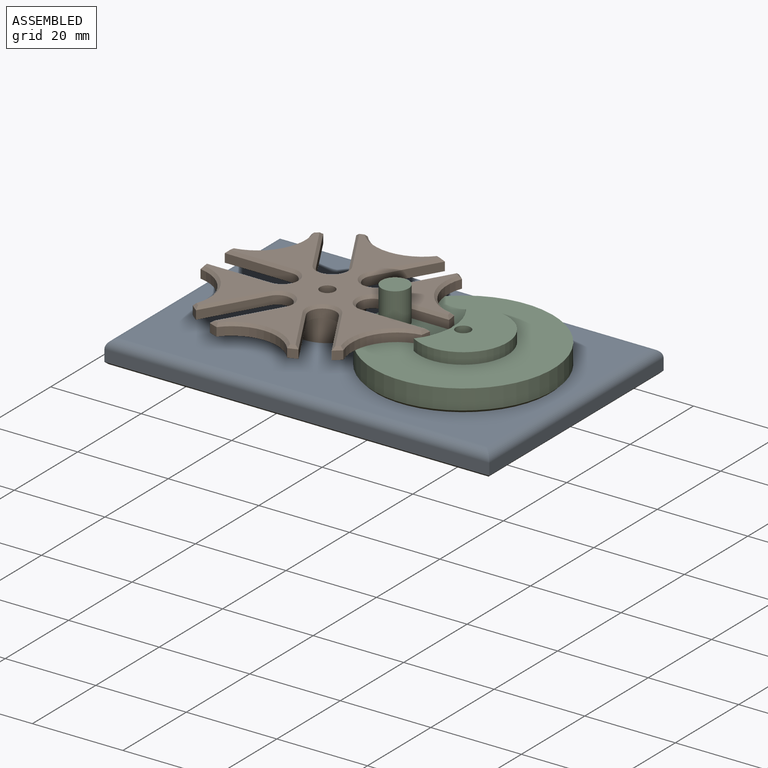
[diagram: assembled view]
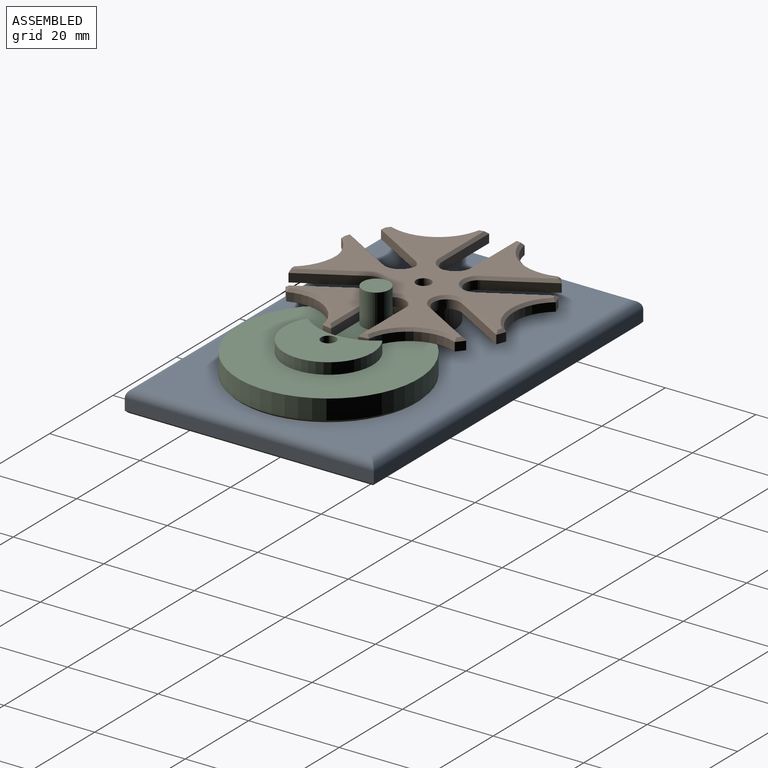
[diagram: assembled view, second angle]
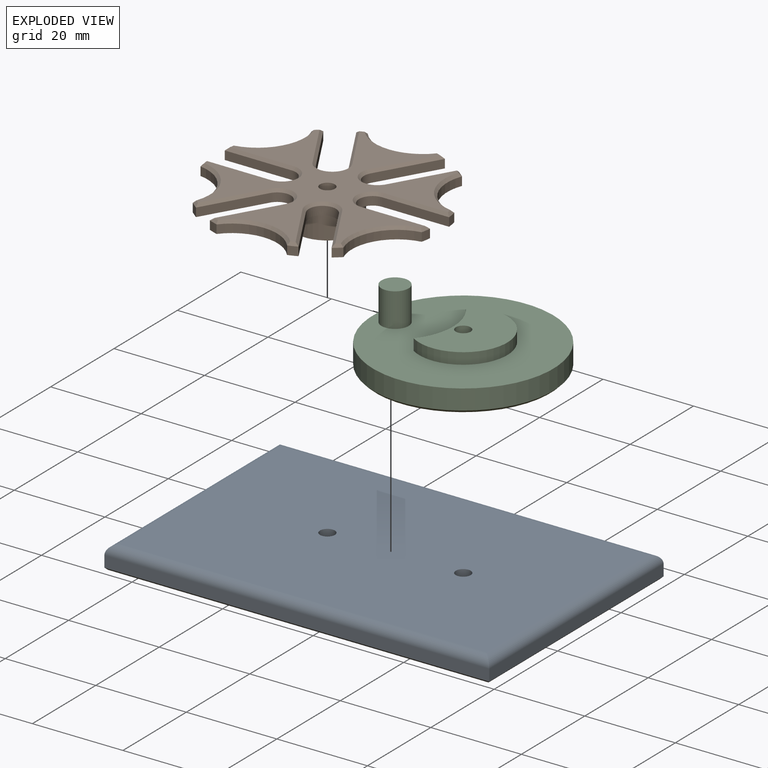
[diagram: exploded view]
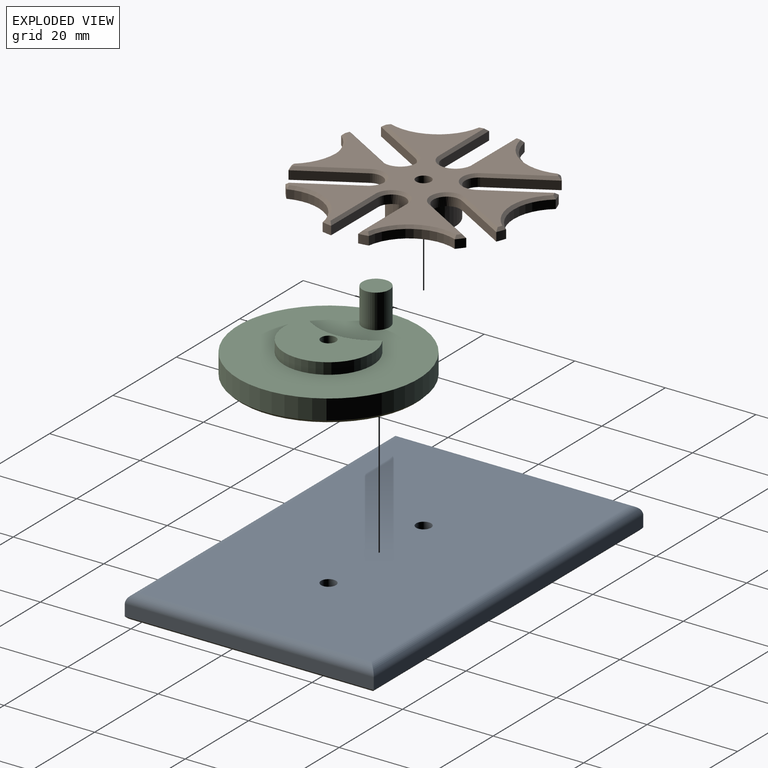
[diagram: exploded view, second angle]
ASSEMBLY  parts=3 mates=4
PART A: 18 faces, bbox 85x55x5 mm
  f0: plane 55x2.5mm, normal (-1,0,0), area 137.5mm2, adj f1,f4,f10,f15
  f1: plane 85x2.5mm, normal (0,-1,0), area 212.5mm2, adj f0,f2,f11,f14
  f2: plane 55x2.5mm, normal (1,0,0), area 137.5mm2, adj f1,f4,f13,f16
  f3: cylinder r=1.65mm len=4.5mm, axis (0,0,-1), area 46.7mm2, adj f6,f9
  f4: plane 85x2.5mm, normal (0,1,0), area 212.5mm2, adj f0,f2,f12,f17
  f5: cylinder r=1.65mm len=4.5mm, axis (0,0,-1), area 46.7mm2, adj f6,f8
  f6: plane 81x51mm, normal (0,0,1), area 4113.9mm2, adj f3,f5,f14,f15,f16,f17
  f7: plane 84x54mm, normal (0,0,-1), area 4507mm2, adj f8,f9,f10,f11,f12,f13
  f8: cone r=2.15mm half-angle=45deg, axis (0,0,-1), area 8.4mm2, adj f5,f7
  f9: cone r=2.15mm half-angle=45deg, axis (0,0,-1), area 8.4mm2, adj f3,f7
  f10: plane 55x0.5mm, normal (-0.71,0,-0.71), area 38.5mm2, adj f0,f7,f11,f12
  f11: plane 85x0.5mm, normal (0,-0.71,-0.71), area 59.8mm2, adj f1,f7,f10,f13
  f12: plane 85x0.5mm, normal (0,0.71,-0.71), area 59.8mm2, adj f4,f7,f10,f13
  f13: plane 55x0.5mm, normal (0.71,0,-0.71), area 38.5mm2, adj f2,f7,f11,f12
  f14: cylinder r=2mm len=85mm, axis (-1,0,0), area 262.5mm2, adj f1,f6,f15,f16
  f15: cylinder r=2mm len=55mm, axis (0,1,0), area 168.2mm2, adj f0,f6,f14,f17
  f16: cylinder r=2mm len=55mm, axis (0,-1,0), area 168.2mm2, adj f2,f6,f14,f17
  f17: cylinder r=2mm len=85mm, axis (1,0,0), area 262.5mm2, adj f4,f6,f15,f16
PART B: 82 faces, bbox 49.6x47.5x7.5 mm
  f0: plane 21.32x19.99mm, normal (0,0,-1), area 144mm2, adj f6,f7,f8,f9,f10,f11,f12,f43
  f1: plane 19.62x17.69mm, normal (0,0,-1), area 144mm2, adj f5,f6,f36,f37,f38,f39,f40,f43
  f2: plane 21.32x19.99mm, normal (0,0,-1), area 144mm2, adj f30,f31,f32,f33,f34,f35,f36,f43
  f3: plane 21.32x19.99mm, normal (0,0,-1), area 144mm2, adj f24,f25,f26,f27,f28,f29,f30,f43
  f4: plane 19.62x17.69mm, normal (0,0,-1), area 144mm2, adj f18,f19,f20,f21,f22,f23,f24,f43
  f5: plane 12.83x7.41mm, normal (-0.87,-0.5,0), area 28.2mm2, adj f1,f6,f40,f50
  f6: cylinder r=3mm len=5.6mm, axis (0,0,-1), area 17.9mm2, adj f0,f1,f5,f7,f48
  f7: plane 12.83x7.41mm, normal (0.87,0.5,0), area 28.2mm2, adj f0,f6,f8,f46
  f8: cylinder r=25mm len=1.9mm, axis (0,0,-1), area 4.1mm2, adj f0,f7,f9,f47
  f9: cylinder r=10mm len=13.52mm, axis (0,0,-1), area 34mm2, adj f0,f8,f10,f49
  f10: cylinder r=25mm len=2.11mm, axis (0,0,-1), area 4.1mm2, adj f0,f9,f11,f51
  f11: plane 14.82x1.9mm, normal (0,-1,0), area 28.2mm2, adj f0,f10,f12,f53
  f12: cylinder r=3mm len=6mm, axis (0,0,-1), area 17.9mm2, adj f0,f11,f13,f42,f55
  f13: plane 14.82x1.9mm, normal (0,1,0), area 28.2mm2, adj f12,f14,f42,f57
  f14: cylinder r=25mm len=2.11mm, axis (0,0,-1), area 4.1mm2, adj f13,f15,f42,f59
  f15: cylinder r=10mm len=13.52mm, axis (0,0,-1), area 34mm2, adj f14,f16,f42,f61
  f16: cylinder r=25mm len=1.9mm, axis (0,0,-1), area 4.1mm2, adj f15,f17,f42,f63
  f17: plane 12.83x7.41mm, normal (0.87,-0.5,0), area 28.2mm2, adj f16,f18,f42,f65
  f18: cylinder r=3mm len=5.6mm, axis (0,0,-1), area 17.9mm2, adj f4,f17,f19,f42,f67
  f19: plane 12.83x7.41mm, normal (-0.87,0.5,0), area 28.2mm2, adj f4,f18,f20,f69
  f20: cylinder r=25mm len=2.01mm, axis (0,0,-1), area 4.1mm2, adj f4,f19,f21,f71
  f21: cylinder r=10mm len=15.61mm, axis (0,0,-1), area 34mm2, adj f4,f20,f22,f73
  f22: cylinder r=25mm len=2.01mm, axis (0,0,-1), area 4.1mm2, adj f4,f21,f23,f75
  f23: plane 12.83x7.41mm, normal (0.87,0.5,0), area 28.2mm2, adj f4,f22,f24,f77
  f24: cylinder r=3mm len=5.6mm, axis (0,0,-1), area 17.9mm2, adj f3,f4,f23,f25,f79
  f25: plane 12.83x7.41mm, normal (-0.87,-0.5,0), area 28.2mm2, adj f3,f24,f26,f81
  f26: cylinder r=25mm len=1.9mm, axis (0,0,-1), area 4.1mm2, adj f3,f25,f27,f80
  f27: cylinder r=10mm len=13.52mm, axis (0,0,-1), area 34mm2, adj f3,f26,f28,f78
  f28: cylinder r=25mm len=2.11mm, axis (0,0,-1), area 4.1mm2, adj f3,f27,f29,f76
  f29: plane 14.82x1.9mm, normal (0,1,0), area 28.2mm2, adj f3,f28,f30,f74
  f30: cylinder r=3mm len=6mm, axis (0,0,-1), area 17.9mm2, adj f2,f3,f29,f31,f72
  f31: plane 14.82x1.9mm, normal (0,-1,0), area 28.2mm2, adj f2,f30,f32,f70
  f32: cylinder r=25mm len=2.11mm, axis (0,0,-1), area 4.1mm2, adj f2,f31,f33,f68
  f33: cylinder r=10mm len=13.52mm, axis (0,0,-1), area 34mm2, adj f2,f32,f34,f66
  f34: cylinder r=25mm len=1.9mm, axis (0,0,-1), area 4.1mm2, adj f2,f33,f35,f64
  f35: plane 12.83x7.41mm, normal (-0.87,0.5,0), area 28.2mm2, adj f2,f34,f36,f62
  f36: cylinder r=3mm len=5.6mm, axis (0,0,-1), area 17.9mm2, adj f1,f2,f35,f37,f60
  f37: plane 12.83x7.41mm, normal (0.87,-0.5,0), area 28.2mm2, adj f1,f36,f38,f58
  f38: cylinder r=25mm len=2.01mm, axis (0,0,-1), area 4.1mm2, adj f1,f37,f39,f56
  f39: cylinder r=10mm len=15.61mm, axis (0,0,-1), area 34mm2, adj f1,f38,f40,f54
  f40: cylinder r=25mm len=2.01mm, axis (0,0,-1), area 4.1mm2, adj f1,f5,f39,f52
  f41: plane 48.27x46.1mm, normal (0,0,1), area 791.4mm2, adj f45,f46,f47,f48,f49,f50,f51,f52
  f42: plane 21.32x19.99mm, normal (0,0,-1), area 144mm2, adj f12,f13,f14,f15,f16,f17,f18,f43
  f43: cylinder r=7mm len=14mm, axis (0,0,1), area 219.9mm2, adj f0,f1,f2,f3,f4,f42,f44
  f44: plane 14x14mm, normal (0,0,-1), area 145.4mm2, adj f43,f45
  f45: cylinder r=1.65mm len=7.5mm, axis (0,0,1), area 77.8mm2, adj f41,f44
  f46: plane 13.14x7.59mm, normal (0.61,0.35,0.71), area 12.3mm2, adj f7,f41,f47,f48
  f47: cone r=24.4mm half-angle=45deg, axis (0,0,-1), area 1.3mm2, adj f8,f41,f46,f49
  f48: cone r=3mm half-angle=45deg, axis (0,0,1), area 8.8mm2, adj f6,f41,f46,f50
  f49: cone r=10mm half-angle=45deg, axis (0,0,1), area 15.3mm2, adj f9,f41,f47,f51
  f50: plane 12.84x7.94mm, normal (-0.61,-0.35,0.71), area 12.3mm2, adj f5,f41,f48,f52
  f51: cone r=24.4mm half-angle=45deg, axis (0,0,-1), area 1.3mm2, adj f10,f41,f49,f53
  f52: cone r=24.4mm half-angle=45deg, axis (0,0,-1), area 1.3mm2, adj f40,f41,f50,f54
  f53: plane 14.83x0.61mm, normal (0,-0.71,0.71), area 12.3mm2, adj f11,f41,f51,f55
  f54: cone r=10mm half-angle=45deg, axis (0,0,1), area 15.3mm2, adj f39,f41,f52,f56
  f55: cone r=3mm half-angle=45deg, axis (0,0,1), area 8.8mm2, adj f12,f41,f53,f57
  f56: cone r=24.4mm half-angle=45deg, axis (0,0,-1), area 1.3mm2, adj f38,f41,f54,f58
  f57: plane 14.83x0.61mm, normal (0,0.71,0.71), area 12.3mm2, adj f13,f41,f55,f59
  f58: plane 12.84x7.94mm, normal (0.61,-0.35,0.71), area 12.3mm2, adj f37,f41,f56,f60
  f59: cone r=24.4mm half-angle=45deg, axis (0,0,-1), area 1.3mm2, adj f14,f41,f57,f61
  f60: cone r=3mm half-angle=45deg, axis (0,0,1), area 8.8mm2, adj f36,f41,f58,f62
  f61: cone r=10mm half-angle=45deg, axis (0,0,1), area 15.3mm2, adj f15,f41,f59,f63
  f62: plane 13.14x7.59mm, normal (-0.61,0.35,0.71), area 12.3mm2, adj f35,f41,f60,f64
  f63: cone r=24.4mm half-angle=45deg, axis (0,0,-1), area 1.3mm2, adj f16,f41,f61,f65
  f64: cone r=24.4mm half-angle=45deg, axis (0,0,-1), area 1.3mm2, adj f34,f41,f62,f66
  f65: plane 13.14x7.59mm, normal (0.61,-0.35,0.71), area 12.3mm2, adj f17,f41,f63,f67
  f66: cone r=10mm half-angle=45deg, axis (0,0,1), area 15.3mm2, adj f33,f41,f64,f68
  f67: cone r=3mm half-angle=45deg, axis (0,0,1), area 8.8mm2, adj f18,f41,f65,f69
  f68: cone r=24.4mm half-angle=45deg, axis (0,0,-1), area 1.3mm2, adj f32,f41,f66,f70
  f69: plane 12.84x7.94mm, normal (-0.61,0.35,0.71), area 12.3mm2, adj f19,f41,f67,f71
  f70: plane 14.83x0.61mm, normal (0,-0.71,0.71), area 12.3mm2, adj f31,f41,f68,f72
  f71: cone r=24.4mm half-angle=45deg, axis (0,0,-1), area 1.3mm2, adj f20,f41,f69,f73
  f72: cone r=3mm half-angle=45deg, axis (0,0,1), area 8.8mm2, adj f30,f41,f70,f74
  f73: cone r=10mm half-angle=45deg, axis (0,0,1), area 15.3mm2, adj f21,f41,f71,f75
  f74: plane 14.83x0.61mm, normal (0,0.71,0.71), area 12.3mm2, adj f29,f41,f72,f76
  f75: cone r=24.4mm half-angle=45deg, axis (0,0,-1), area 1.3mm2, adj f22,f41,f73,f77
  f76: cone r=24.4mm half-angle=45deg, axis (0,0,-1), area 1.3mm2, adj f28,f41,f74,f78
  f77: plane 12.84x7.94mm, normal (0.61,0.35,0.71), area 12.3mm2, adj f23,f41,f75,f79
  f78: cone r=10mm half-angle=45deg, axis (0,0,1), area 15.3mm2, adj f27,f41,f76,f80
  f79: cone r=3mm half-angle=45deg, axis (0,0,1), area 8.8mm2, adj f24,f41,f77,f81
  f80: cone r=24.4mm half-angle=45deg, axis (0,0,-1), area 1.3mm2, adj f26,f41,f78,f81
  f81: plane 13.14x7.59mm, normal (-0.61,-0.35,0.71), area 12.3mm2, adj f25,f41,f79,f80
PART C: 10 faces, bbox 39.8x39.8x12.5 mm
  f0: plane 39.84x39.84mm, normal (0,0,1), area 1007mm2, adj f1,f3,f4,f6
  f1: cylinder r=19.92mm len=39.84mm, axis (0,0,-1), area 550.7mm2, adj f0,f9
  f2: plane 38.64x38.64mm, normal (0,0,-1), area 1164.1mm2, adj f8,f9
  f3: cylinder r=12.86mm len=13.74mm, axis (0,0,-1), area 44.9mm2, adj f0,f4,f5
  f4: cylinder r=9.75mm len=19.5mm, axis (0,0,-1), area 103.9mm2, adj f0,f3,f5
  f5: plane 19.5x18.64mm, normal (0,0,1), area 202.8mm2, adj f3,f4,f8
  f6: cylinder r=3mm len=7.5mm, axis (0,0,-1), area 141.4mm2, adj f0,f7
  f7: plane 6x6mm, normal (0,0,1), area 28.3mm2, adj f6
  f8: cylinder r=1.65mm len=7.5mm, axis (0,0,1), area 77.8mm2, adj f2,f5
  f9: cone r=19.92mm half-angle=45deg, axis (0,0,1), area 104.6mm2, adj f1,f2
PLACE A t=(-5.1,-1.42,0.41)mm fixed
PLACE B rot(axis=(0,0,-1),0.2deg) t=(24.9,26.08,10.41)mm
PLACE C rot(axis=(0,0,1),56.4deg) t=(54.9,26.08,5.41)mm
MATE cylindrical C.f8 <-> A.f5  axis (0,0,-1) through (54.9,26.08,5.41)mm
MATE planar B.f43 <-> A.f6  axis (0,0,-1) through (24.9,26.08,5.41)mm
MATE planar C.f4 <-> A.f6  axis (0,0,-1) through (54.9,26.08,5.41)mm
MATE cylindrical B.f45 <-> A.f3  axis (0,0,-1) through (24.9,26.08,5.41)mm
